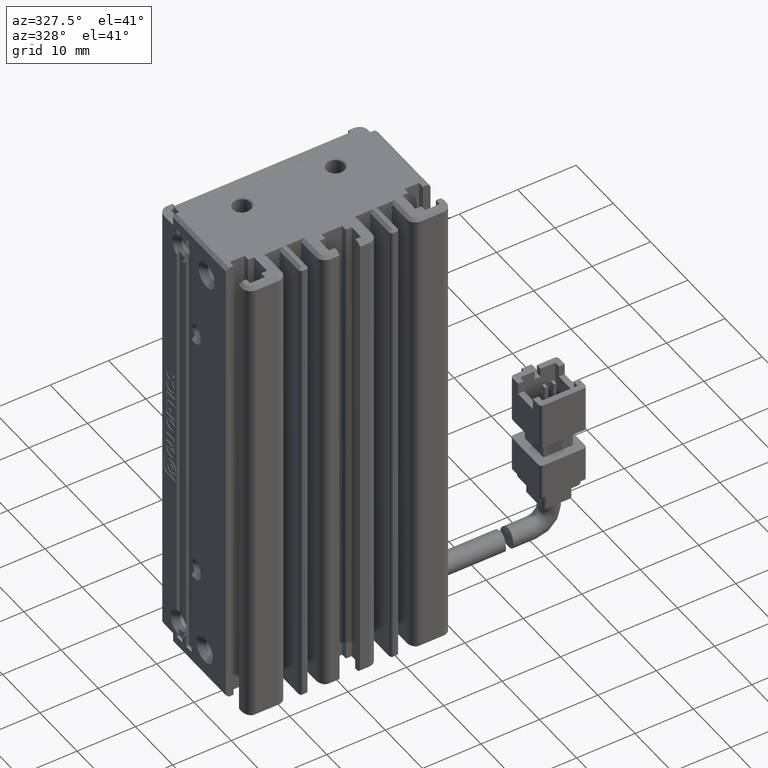
[diagram: clean part render]
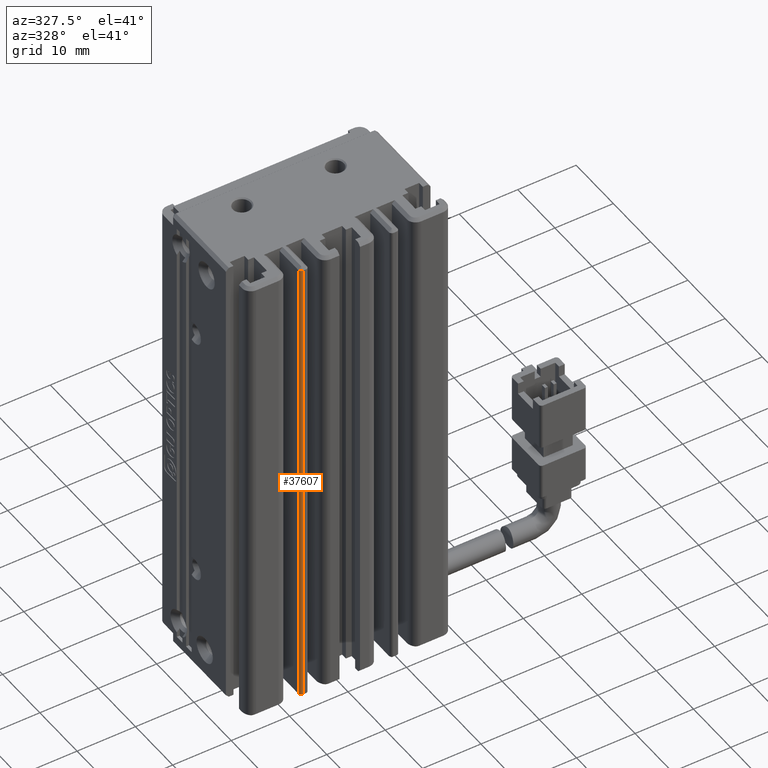
[diagram: same view with one face highlighted and labeled with its STEP entity id]
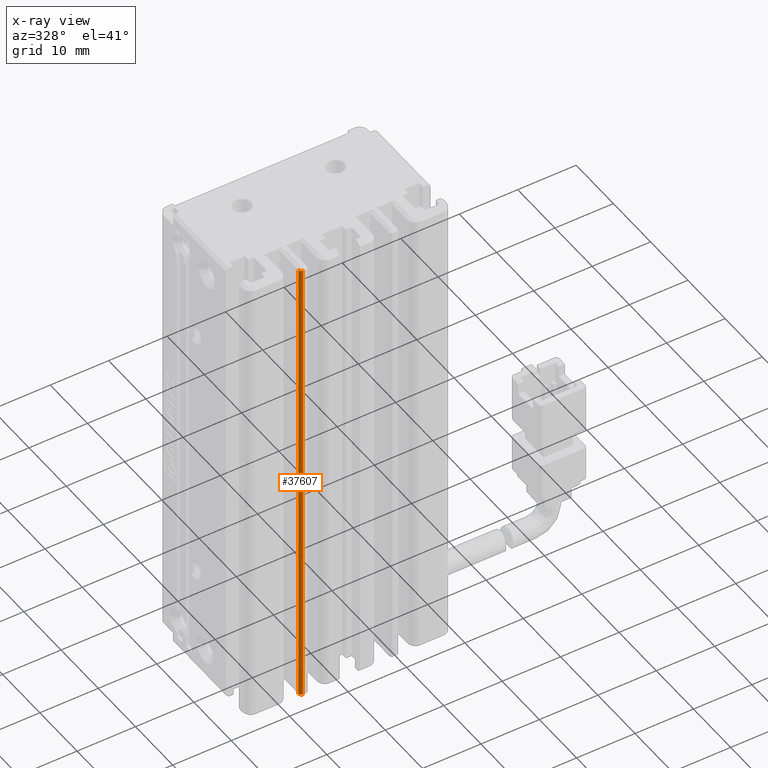
[diagram: x-ray of the same camera — body ghosted, the highlighted face saturated]
A machine part, auxiliary view. The second image highlights one B-rep face of the part: STEP entity #37607.
The next image is the same camera in x-ray: the body ghosted, the highlighted face saturated — about 0% of this face is hidden behind the body in this view.
In plain terms, the highlighted cylindrical surface (edge-blend (fillet) strip) has radius 0.5 mm, axis along (0, 0, -1).
Its self-contained STEP definition (entity closure, byte-faithful):
#154 = DIRECTION ( 'NONE',  ( 0.0000000000000000000, -0.0000000000000000000, -1.000000000000000000 ) ) ;
#785 = VERTEX_POINT ( 'NONE', #30070 ) ;
#976 = CARTESIAN_POINT ( 'NONE',  ( 32.92537974683543200, 10.99073232306087900, -155.5000000000164000 ) ) ;
#1161 = FACE_OUTER_BOUND ( 'NONE', #12124, .T. ) ;
#2158 = ORIENTED_EDGE ( 'NONE', *, *, #8023, .F. ) ;
#2454 = ORIENTED_EDGE ( 'NONE', *, *, #12298, .T. ) ;
#2666 = VERTEX_POINT ( 'NONE', #976 ) ;
#3101 = DIRECTION ( 'NONE',  ( 1.000000000000000000, 0.0000000000000000000, 0.0000000000000000000 ) ) ;
#3343 = CARTESIAN_POINT ( 'NONE',  ( 32.92537974683543200, 11.49073232304837200, -155.5000000000654800 ) ) ;
#3386 = CARTESIAN_POINT ( 'NONE',  ( 32.42537974683543200, 11.49073232304837300, -74.50000000000001400 ) ) ;
#4992 = LINE ( 'NONE', #10979, #22794 ) ;
#5118 = AXIS2_PLACEMENT_3D ( 'NONE', #3343, #154, #3101 ) ;
#5644 = CARTESIAN_POINT ( 'NONE',  ( 32.92537974683543200, 10.99073232304837000, -74.50000000000001400 ) ) ;
#5697 = DIRECTION ( 'NONE',  ( -1.000000000000000000, 0.0000000000000000000, 0.0000000000000000000 ) ) ;
#6443 = AXIS2_PLACEMENT_3D ( 'NONE', #6753, #33147, #12758 ) ;
#6571 = VERTEX_POINT ( 'NONE', #3386 ) ;
#6753 = CARTESIAN_POINT ( 'NONE',  ( 32.92537974683543200, 11.49073232304837200, -74.50000000000001400 ) ) ;
#8023 = EDGE_CURVE ( 'NONE', #2666, #785, #24389, .T. ) ;
#10979 = CARTESIAN_POINT ( 'NONE',  ( 32.92537974683543200, 10.99073232304837000, -74.00000000000001400 ) ) ;
#12124 = EDGE_LOOP ( 'NONE', ( #29947, #2158, #27648, #2454 ) ) ;
#12298 = EDGE_CURVE ( 'NONE', #19942, #6571, #33566, .T. ) ;
#12758 = DIRECTION ( 'NONE',  ( -1.000000000000000000, 0.0000000000000000000, 0.0000000000000000000 ) ) ;
#15984 = EDGE_CURVE ( 'NONE', #2666, #19942, #4992, .T. ) ;
#18009 = CYLINDRICAL_SURFACE ( 'NONE', #25479, 0.5000000000000004400 ) ;
#19942 = VERTEX_POINT ( 'NONE', #5644 ) ;
#22258 = LINE ( 'NONE', #32630, #37462 ) ;
#22794 = VECTOR ( 'NONE', #25851, 1000.000000000000000 ) ;
#24389 = CIRCLE ( 'NONE', #5118, 0.4999999999499710200 ) ;
#25479 = AXIS2_PLACEMENT_3D ( 'NONE', #26174, #37511, #5697 ) ;
#25851 = DIRECTION ( 'NONE',  ( -0.0000000000000000000, -0.0000000000000000000, 1.000000000000000000 ) ) ;
#26174 = CARTESIAN_POINT ( 'NONE',  ( 32.92537974683543200, 11.49073232304837200, -74.00000000000001400 ) ) ;
#27648 = ORIENTED_EDGE ( 'NONE', *, *, #15984, .T. ) ;
#29947 = ORIENTED_EDGE ( 'NONE', *, *, #37126, .F. ) ;
#30070 = CARTESIAN_POINT ( 'NONE',  ( 32.42537974684794500, 11.49073232304836600, -155.5000000000163700 ) ) ;
#32630 = CARTESIAN_POINT ( 'NONE',  ( 32.42537974683543200, 11.49073232304837200, -74.00000000000001400 ) ) ;
#33147 = DIRECTION ( 'NONE',  ( 0.0000000000000000000, 0.0000000000000000000, -1.000000000000000000 ) ) ;
#33566 = CIRCLE ( 'NONE', #6443, 0.5000000000000004400 ) ;
#35618 = DIRECTION ( 'NONE',  ( 0.0000000000000000000, 0.0000000000000000000, 1.000000000000000000 ) ) ;
#37126 = EDGE_CURVE ( 'NONE', #785, #6571, #22258, .T. ) ;
#37462 = VECTOR ( 'NONE', #35618, 1000.000000000000000 ) ;
#37511 = DIRECTION ( 'NONE',  ( 0.0000000000000000000, 0.0000000000000000000, -1.000000000000000000 ) ) ;
#37607 = ADVANCED_FACE ( 'NONE', ( #1161 ), #18009, .T. ) ;